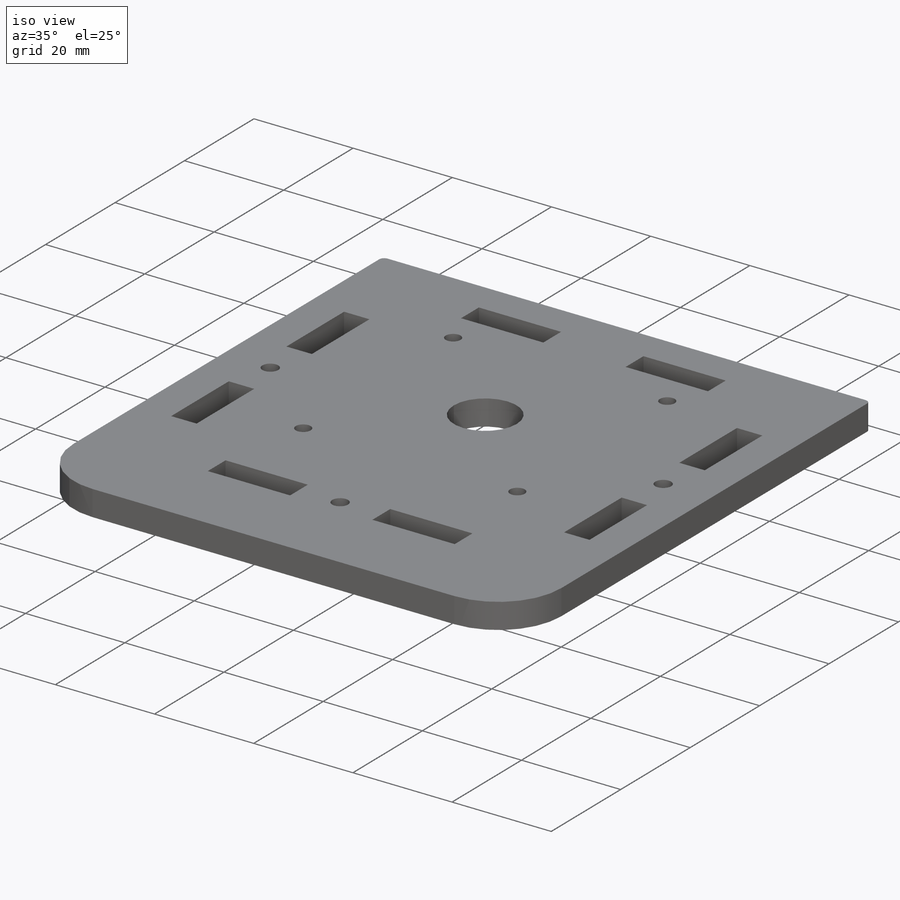
[diagram: iso view]
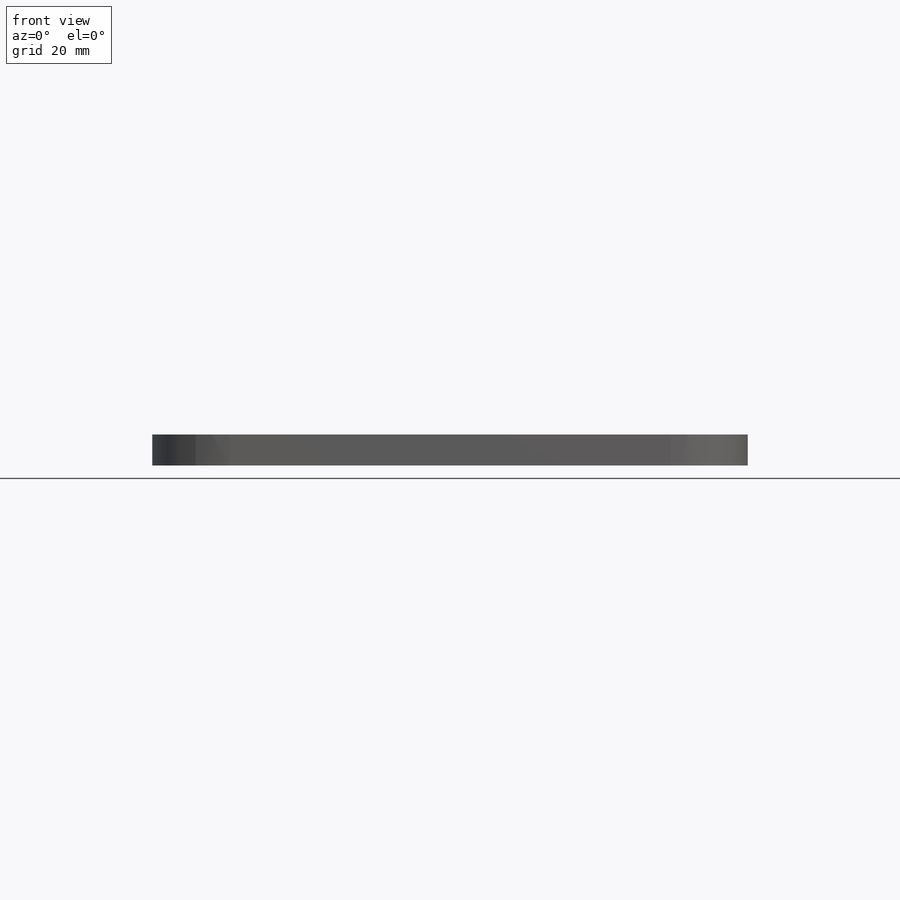
[diagram: front view]
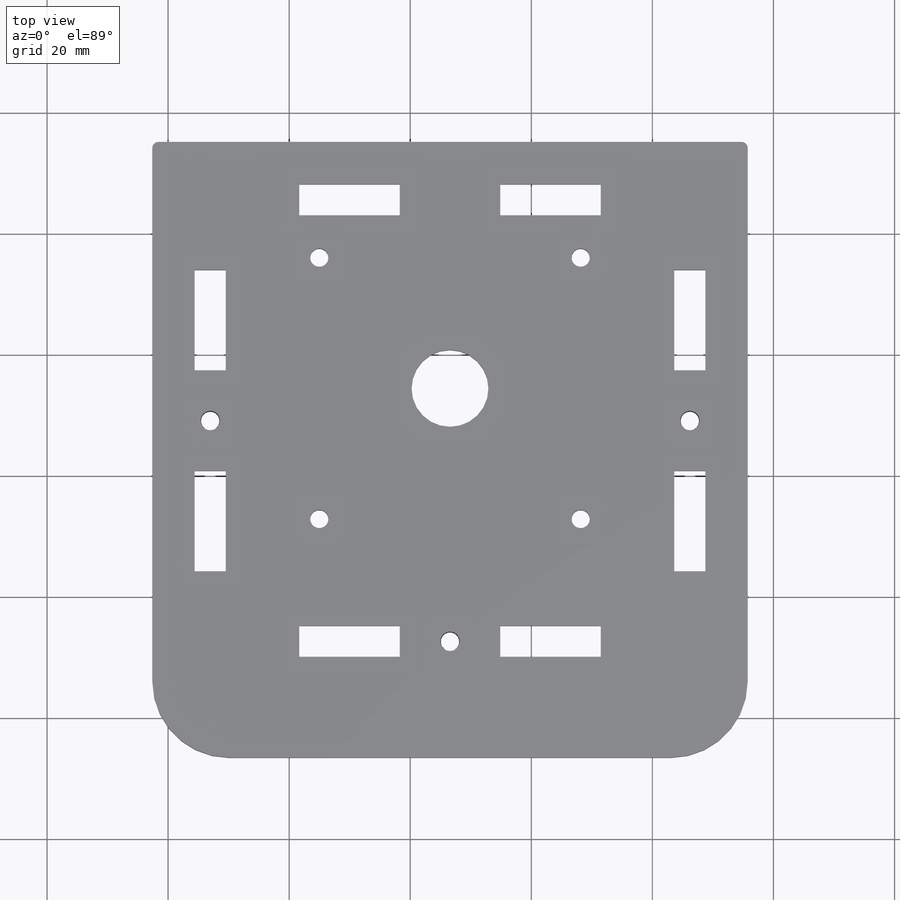
[diagram: top view]
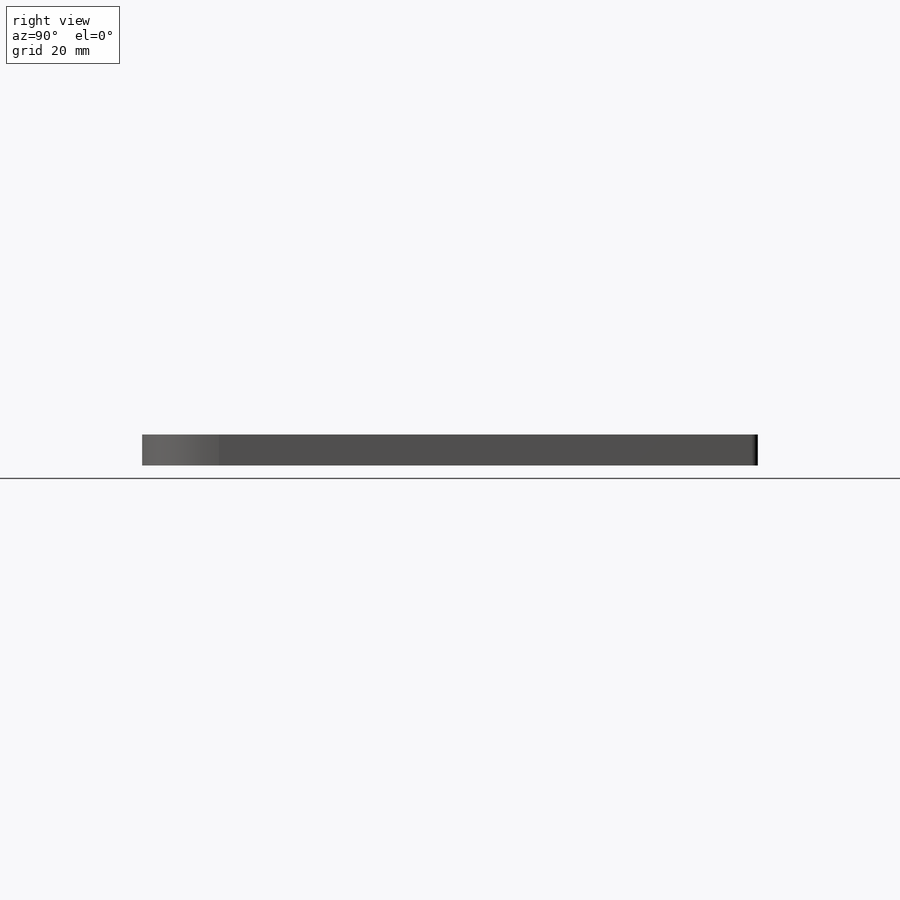
[diagram: right view]
SOLIDWORKS PART (.sldprt)
format: sldprt  version: not decoded by parser v0  size: 401,920 bytes
history: native  units: mm
features: sketch x11, hole x4, cut_extrude x2, material x1, extrude x1, pattern_linear x1 + 1 further entry (+10 scaffold rows collapsed)
feature tree (31):
  scaffold x10  (default folders/planes/origin — collapsed)
  material  "Material <not specified>"
  "Annotations"  RD1=96.36mm RD2=38.1mm
  sketch  "Sketch1"  dims[c1.D3=12.7mm c1.D2=1.0mm c1.D4=1.0mm c1.D1=98.36mm c2.D2=112.0mm]
  extrude  "Main"  Depth=5.13mm
  hole  "Ø3.0 (3) Diameter Hole2"  Diameter=3mm Depth=5.13mm
  sketch  "Sketch3"  dims[D3=27.59mm D4=43.18mm D5=19.12mm D6=43.18mm D1=2.0 D2=2.0]
  sketch  "Sketch2"  dims[hole-wizard template sketch: 60 standard entries collapsed; hole parameters kept: c18.Thru Hole Depth=5.13mm]
  sketch  "Sketch4"  dims[c1.D1=16.6mm c1.D2=5.13mm c1.D5=9.565mm c1.D6=21.135mm c2.D5=7.0mm c2.D7=16.6mm c2.D3=2.0 c2.D4=2.0]
  cut_extrude  "Teeth holes"  Depth=5.13mm
  sketch  "Sketch5"  dims[c1.D1=16.6mm c1.D2=5.13mm c1.D5=9.565mm c1.D6=49.8mm c1.D7=22.28mm c1.D3=24.28mm c1.D4=49.8mm c2.D5=24.28mm c2.D4=2.0 c3.D4=2.0 c3.D1=2.0 c3.D2=2.0]
  cut_extrude  "Teeth holes 2"  [1 undecoded]
  hole  "1/2 (0.5) Diameter Hole1"  Diameter=12.7mm Depth=5.13mm
  sketch  "Sketch7"  dims[D1=49.18mm D2=40.71mm]
  sketch  "Sketch6"  dims[hole-wizard template sketch: 60 standard entries collapsed; hole parameters kept: c18.Thru Hole Depth=5.13mm]
  hole  "M3 Clearance Hole2"  Diameter=3.2mm Depth=5.08mm
  sketch  "Sketch11"  dims[c1.D1=9.565mm c1.D2=9.565mm c1.D3=8.3mm c1.D4=8.3mm c1.D5=10.3mm c1.D6=2.565mm c1.D7=~16.902436mm c2.D6=2.565mm c2.D5=2.565mm c3.D6=8.3mm]
  sketch  "Sketch10"  dims[hole-wizard template sketch: 47 standard entries collapsed; hole parameters kept: c15.Hole Depth=5.08mm c15.D3=~14.816244mm c15.Drill Angle=118.0deg]
  hole  "DELETE ME Ø3.0 (3) Diameter Hole1"  Diameter=3mm Depth=5.1mm
  sketch  "Sketch13"  dims[D1=9.525mm D2=30.13mm]
  sketch  "Sketch12"  dims[hole-wizard template sketch: 47 standard entries collapsed; hole parameters kept: c15.Hole Depth=5.1mm c15.D3=~14.816244mm c15.Drill Angle=118.0deg]
  pattern_linear  "LPattern1"  Count1=2 Count2=2 Spacing1=38.1mm Spacing2=38.1mm
decode coverage: 18 of 19 modeling features carry decoded parameters; 1 rows unclassified (native names shown)
note: ~ marks probable driven/reference dimensions
note: 1 parameter value undecoded
summary: Diameter pulled from absorbed wizard sketch
note: suppression state not decoded; provenance and decode notes live in map.json
